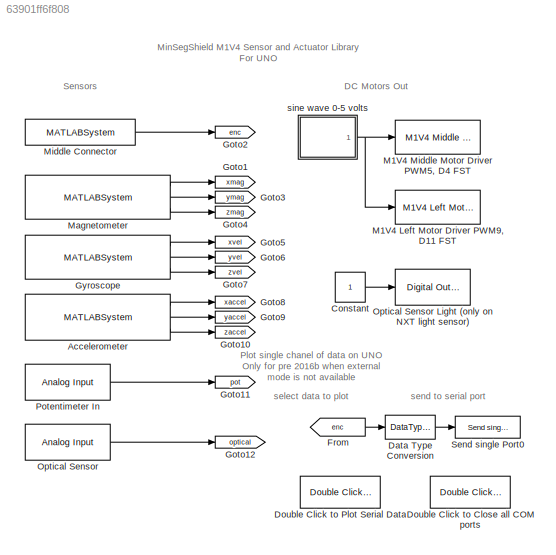
MODEL slx_63901ff6f808
KIND model
CONFIG AbsTol = auto
CONFIG FixedStep = auto
CONFIG MaxStep = auto
CONFIG MinStep = auto
CONFIG RelTol = 1e-3
CONFIG SampleTimeConstraint = Unconstrained
CONFIG Solver = ode45
CONFIG SolverMode = Auto
CONFIG SolverName = ode45
CONFIG StartTime = 0.0
CONFIG StopTime = 10.0
BLOCK [MATLABSystem] Accelerometer
  MaskDisplay = disp('soMPU6050Accel');\nport_label('output',1,'xaccel');\nport_label('output',2,'yaccel');\nport_label('output',3,'zaccel');
  MaskType = soMPU6050Accel
  Ports = [0, 3]
  SimulateUsing = Code generation
  System = soMPU6050Accel
BLOCK [Constant] Constant
BLOCK [DataTypeConversion] Data Type Conversion
  OutDataTypeStr = single
  RndMeth = Floor
  SaturateOnIntegerOverflow = off
BLOCK [Reference] Double Click to Close all COM ports  REF=RASPlib/Double Click to
Close all COM ports
  Ports = []
  SourceBlock = RASPlib/Double Click to\nClose all COM ports
BLOCK [Reference] Double Click to Plot Serial Data  REF=RASPlib/Double Click to
Plot Serial Data
  BaudRate = 115200
  COMport = 4
  DataType = uint8
  NumSamples = 500
  Ports = []
  SourceBlock = RASPlib/Double Click to\nPlot Serial Data
BLOCK [From] From
  GotoTag = enc
BLOCK [Goto] Goto1
  GotoTag = xmag
BLOCK [Goto] Goto10
  GotoTag = zaccel
BLOCK [Goto] Goto11
  GotoTag = pot
BLOCK [Goto] Goto12
  GotoTag = optical
BLOCK [Goto] Goto2
  GotoTag = enc
BLOCK [Goto] Goto3
  GotoTag = ymag
BLOCK [Goto] Goto4
  GotoTag = zmag
BLOCK [Goto] Goto5
  GotoTag = xvel
BLOCK [Goto] Goto6
  GotoTag = yvel
BLOCK [Goto] Goto7
  GotoTag = zvel
BLOCK [Goto] Goto8
  GotoTag = xaccel
BLOCK [Goto] Goto9
  GotoTag = yaccel
BLOCK [MATLABSystem] Gyroscope
  DLPFmode = 0
  MaskDisplay = disp('soMPU6050Gyro');\nport_label('output',1,'xvel');\nport_label('output',2,'yvel');\nport_label('output',3,'zvel');
  MaskType = soMPU6050Gyro
  Ports = [0, 3]
  System = soMPU6050Gyro
BLOCK [Reference] M1V4  Middle Motor Driver PWM5, D4 FST  REF=MinSegLibrary_M1V4/M1V4  Middle Motor Driver
PWM5, D4 FST
  Ports = [1]
  SourceBlock = MinSegLibrary_M1V4/M1V4  Middle Motor Driver\nPWM5, D4 FST
  SourceType = Motor Driver
  Vsupply = 3.25
BLOCK [Reference] M1V4 Left Motor Driver PWM9, D11 FST  REF=MinSegLibrary_M1V4/M1V4 Left Motor Driver
PWM9, D11 FST
  Ports = [1]
  SourceBlock = MinSegLibrary_M1V4/M1V4 Left Motor Driver\nPWM9, D11 FST
  SourceType = Motor Driver
  Vsupply = 3.25
BLOCK [MATLABSystem] Magnetometer
  MaskDisplay = disp('soHMC5883L');\nport_label('output',1,'xmag');\nport_label('output',2,'ymag');\nport_label('output',3,'zmag');
  MaskType = soHMC5883L
  Ports = [0, 3]
  SimulateUsing = Code generation
  System = soHMC5883L
BLOCK [MATLABSystem] Middle Connector
  Encoder = 0
  MaskDisplay = disp('soEncoder');\nport_label('output',1,'y');
  MaskType = Encoder_arduino_uno_nano
  PinA = 2
  PinB = 3
  Ports = [0, 1]
  System = Encoder_arduino_uno_nano
BLOCK [Reference] Optical Sensor  REF=arduinolib/Analog Input
  Ports = [0, 1]
  SourceBlock = arduinolib/Analog Input
  SourceType = Arduino Analog Input
  blockPlatform = arduino
  pinNumber = 1
  sampleTime = -1
BLOCK [Reference] Optical Sensor Light (only on NXT light sensor)  REF=arduinolib/Digital Output
  Ports = [1]
  SourceBlock = arduinolib/Digital Output
  SourceType = Arduino Digital Output
  blockPlatform = arduino
  pinNumber = 12
BLOCK [Reference] Potentimeter In  REF=arduinolib/Analog Input
  Ports = [0, 1]
  SourceBlock = arduinolib/Analog Input
  SourceType = Arduino Analog Input
  blockPlatform = arduino
  pinNumber = 0
  sampleTime = -1
BLOCK [Reference] Send single Port0  REF=RASPlib/Send single Port0
  Ports = [1]
  SourceBlock = RASPlib/Send single Port0
  SourceType = SubSystem
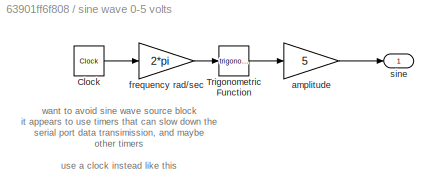
BLOCK [SubSystem] sine wave 0-5 volts
  Ports = [0, 1]
  RequestExecContextInheritance = off
BLOCK [Clock] sine wave 0-5 volts/Clock
BLOCK [Trigonometry] sine wave 0-5 volts/Trigonometric Function
  Ports = [1, 1]
BLOCK [Gain] sine wave 0-5 volts/amplitude
  Gain = 5
  OutDataTypeStr = Inherit: Inherit via internal rule
  ParamDataTypeStr = Inherit: Inherit via internal rule
  SaturateOnIntegerOverflow = off
BLOCK [Gain] sine wave 0-5 volts/frequency rad//sec
  Gain = 2*pi
  OutDataTypeStr = Inherit: Inherit via internal rule
  ParamDataTypeStr = Inherit: Inherit via internal rule
  SaturateOnIntegerOverflow = off
BLOCK [Outport] sine wave 0-5 volts/sine
  IconDisplay = Port number
ANNOTATION (root): DC Motors Out
ANNOTATION (root): MinSegShield M1V4 Sensor and Actuator Library For UNO
ANNOTATION (root): Plot single chanel of data on UNO Only for pre 2016b when external mode is not available
ANNOTATION (root): Sensors
ANNOTATION (root): select data to plot
ANNOTATION (root): send to serial port
ANNOTATION sine wave 0-5 volts: want to avoid sine wave source block it appears to use timers that can slow down the serial port data transimission, and maybe other timers use a clock instead like this
LINE Accelerometer:1 -> Goto8:1
LINE Accelerometer:2 -> Goto9:1
LINE Accelerometer:3 -> Goto10:1
LINE Constant:1 -> Optical Sensor Light (only on NXT light sensor):1
LINE Data Type Conversion:1 -> Send single Port0:1
LINE From:1 -> Data Type Conversion:1
LINE Gyroscope:1 -> Goto5:1
LINE Gyroscope:2 -> Goto6:1
LINE Gyroscope:3 -> Goto7:1
LINE Magnetometer:1 -> Goto1:1
LINE Magnetometer:2 -> Goto3:1
LINE Magnetometer:3 -> Goto4:1
LINE Middle Connector:1 -> Goto2:1
LINE Optical Sensor:1 -> Goto12:1
LINE Potentimeter In:1 -> Goto11:1
LINE sine wave 0-5 volts/Clock:1 -> sine wave 0-5 volts/frequency rad//sec:1
LINE sine wave 0-5 volts/Trigonometric Function:1 -> sine wave 0-5 volts/amplitude:1
LINE sine wave 0-5 volts/amplitude:1 -> sine wave 0-5 volts/sine:1
LINE sine wave 0-5 volts/frequency rad//sec:1 -> sine wave 0-5 volts/Trigonometric Function:1
NET sine wave 0-5 volts:1 -> M1V4  Middle Motor Driver PWM5, D4 FST:1, M1V4 Left Motor Driver PWM9, D11 FST:1
note: NET lines group one-source signal fan-out (src -> all destinations, sorted); 1:1 wires keep LINE
